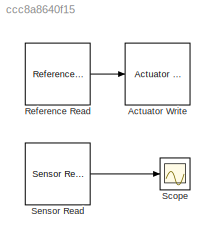
MODEL slx_ccc8a8640f15
KIND model
CONFIG AbsTol = auto
CONFIG EnableMultiTasking = on
CONFIG FixedStep = auto
CONFIG MaxStep = auto
CONFIG MinStep = auto
CONFIG RelTol = 1e-3
CONFIG SampleTimeConstraint = Unconstrained
CONFIG Solver = FixedStepAuto
CONFIG SolverName = FixedStepAuto
CONFIG StartTime = 0.0
CONFIG StopTime = 10.0
BLOCK [Reference] Actuator Write  REF=MotoLibrary/Actuator Write
  Ports = [1]
  SourceBlock = MotoLibrary/Actuator Write
BLOCK [Reference] Reference Read  REF=MotoLibrary/Reference Read
  Ports = [0, 1]
  SourceBlock = MotoLibrary/Reference Read
BLOCK [Scope] Scope
  Floating = off
  NumInputPorts = 1
  Ports = [1]
  ScopeSpecificationString = Simulink.scopes.TimeScopeBlockCfg('CurrentConfiguration', extmgr.ConfigurationSet(extmgr.Configuration('Core','General UI',true),extmgr.Configuration('Core','Source UI',true),extmgr.Configuration('Sources','WiredSimulink',true),extmgr.Configuration('Visuals','Time Domain',true,'SerializedDisplays',{struct('MinYLimReal','-10.9127','MaxYLimReal','98.21429','YLabelReal','','MinYLimMag','0.00000','Max...<+1368ch>
BLOCK [Reference] Sensor Read  REF=MotoLibrary/Sensor Read
  Ports = [0, 1]
  SourceBlock = MotoLibrary/Sensor Read
LINE Reference Read:1 -> Actuator Write:1
LINE Sensor Read:1 -> Scope:1
